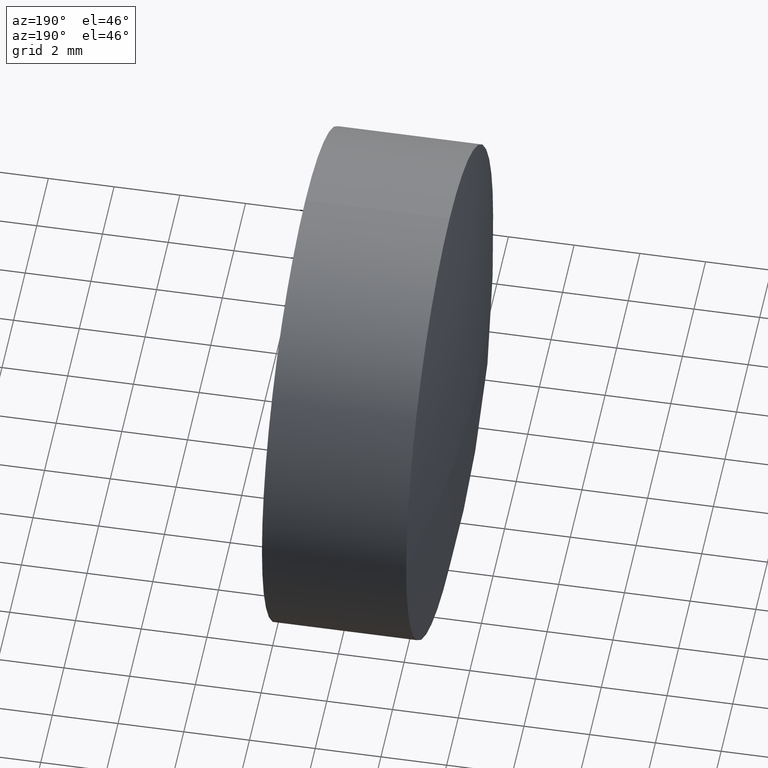
[diagram: clean part render]
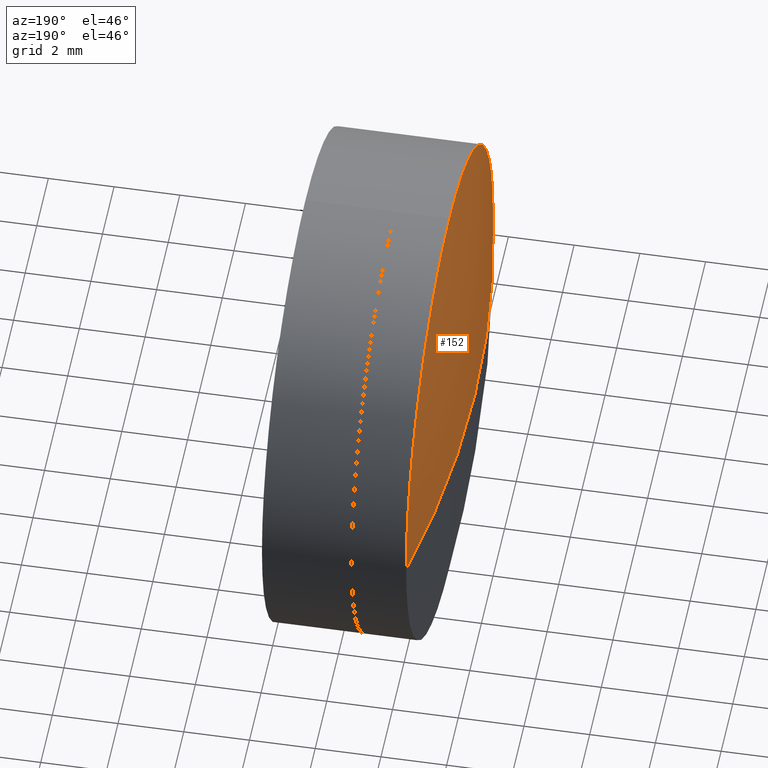
[diagram: same view with one face highlighted and labeled with its STEP entity id]
A machine part, auxiliary view. The second image highlights one B-rep face of the part: STEP entity #152.
In plain terms, the highlighted spherical surface has radius 37.23 mm.
Its self-contained STEP definition (entity closure, byte-faithful):
#6 = CARTESIAN_POINT ( 'NONE',  ( -88.70484587419444722, 10.13402828794794708, 0.000000000000000000 ) ) ;
#10 = CARTESIAN_POINT ( 'NONE',  ( -88.70484587419444722, 2.634028287947922653, -9.184850993605179499E-16 ) ) ;
#19 = DIRECTION ( 'NONE',  ( 0.000000000000000000, 1.000000000000000000, 0.000000000000000000 ) ) ;
#21 = CARTESIAN_POINT ( 'NONE',  ( -88.70484587419444722, 10.13402828794794708, 7.500000000000000000 ) ) ;
#35 = AXIS2_PLACEMENT_3D ( 'NONE', #83, #42, #108 ) ;
#40 = VERTEX_POINT ( 'NONE', #10 ) ;
#42 = DIRECTION ( 'NONE',  ( -0.000000000000000000, 0.000000000000000000, 1.000000000000000000 ) ) ;
#54 = AXIS2_PLACEMENT_3D ( 'NONE', #125, #330, #159 ) ;
#64 = EDGE_CURVE ( 'NONE', #308, #337, #399, .T. ) ;
#71 = ORIENTED_EDGE ( 'NONE', *, *, #293, .F. ) ;
#76 = DIRECTION ( 'NONE',  ( 0.000000000000000000, 0.000000000000000000, 1.000000000000000000 ) ) ;
#83 = CARTESIAN_POINT ( 'NONE',  ( -52.23810897602929515, 10.13402828794794708, 0.000000000000000000 ) ) ;
#105 = ORIENTED_EDGE ( 'NONE', *, *, #106, .T. ) ;
#106 = EDGE_CURVE ( 'NONE', #40, #113, #154, .T. ) ;
#108 = DIRECTION ( 'NONE',  ( 1.000000000000000000, 0.000000000000000000, 0.000000000000000000 ) ) ;
#113 = VERTEX_POINT ( 'NONE', #21 ) ;
#125 = CARTESIAN_POINT ( 'NONE',  ( -52.23810897602929515, 10.13402828794794708, 0.000000000000000000 ) ) ;
#145 = FACE_OUTER_BOUND ( 'NONE', #267, .T. ) ;
#147 = DIRECTION ( 'NONE',  ( -1.000000000000000000, -0.000000000000000000, -0.000000000000000000 ) ) ;
#152 = ADVANCED_FACE ( 'NONE', ( #145 ), #190, .T. ) ;
#154 = CIRCLE ( 'NONE', #425, 7.500000000000000000 ) ;
#159 = DIRECTION ( 'NONE',  ( 0.000000000000000000, 1.000000000000000000, 1.224646799147353207E-16 ) ) ;
#190 = SPHERICAL_SURFACE ( 'NONE', #409, 37.22999999999999687 ) ;
#205 = CARTESIAN_POINT ( 'NONE',  ( -88.70484587419444722, 17.63402828794797017, 0.000000000000000000 ) ) ;
#234 = CIRCLE ( 'NONE', #299, 7.500000000000000000 ) ;
#238 = CARTESIAN_POINT ( 'NONE',  ( -89.46810897602929913, 10.13402828794794885, 0.000000000000000000 ) ) ;
#243 = ORIENTED_EDGE ( 'NONE', *, *, #371, .T. ) ;
#265 = DIRECTION ( 'NONE',  ( -1.000000000000000000, -0.000000000000000000, -0.000000000000000000 ) ) ;
#267 = EDGE_LOOP ( 'NONE', ( #71, #105, #243, #284 ) ) ;
#284 = ORIENTED_EDGE ( 'NONE', *, *, #64, .T. ) ;
#285 = DIRECTION ( 'NONE',  ( 0.000000000000000000, 0.000000000000000000, 1.000000000000000000 ) ) ;
#293 = EDGE_CURVE ( 'NONE', #40, #337, #386, .T. ) ;
#296 = DIRECTION ( 'NONE',  ( -0.000000000000000000, 0.000000000000000000, -1.000000000000000000 ) ) ;
#299 = AXIS2_PLACEMENT_3D ( 'NONE', #310, #265, #285 ) ;
#308 = VERTEX_POINT ( 'NONE', #205 ) ;
#310 = CARTESIAN_POINT ( 'NONE',  ( -88.70484587419444722, 10.13402828794794708, 0.000000000000000000 ) ) ;
#330 = DIRECTION ( 'NONE',  ( 0.000000000000000000, 1.224646799147353207E-16, -1.000000000000000000 ) ) ;
#337 = VERTEX_POINT ( 'NONE', #238 ) ;
#371 = EDGE_CURVE ( 'NONE', #113, #308, #234, .T. ) ;
#386 = CIRCLE ( 'NONE', #54, 37.22999999999999687 ) ;
#399 = CIRCLE ( 'NONE', #35, 37.22999999999999687 ) ;
#409 = AXIS2_PLACEMENT_3D ( 'NONE', #431, #296, #19 ) ;
#425 = AXIS2_PLACEMENT_3D ( 'NONE', #6, #147, #76 ) ;
#431 = CARTESIAN_POINT ( 'NONE',  ( -52.23810897602929515, 10.13402828794794708, 0.000000000000000000 ) ) ;